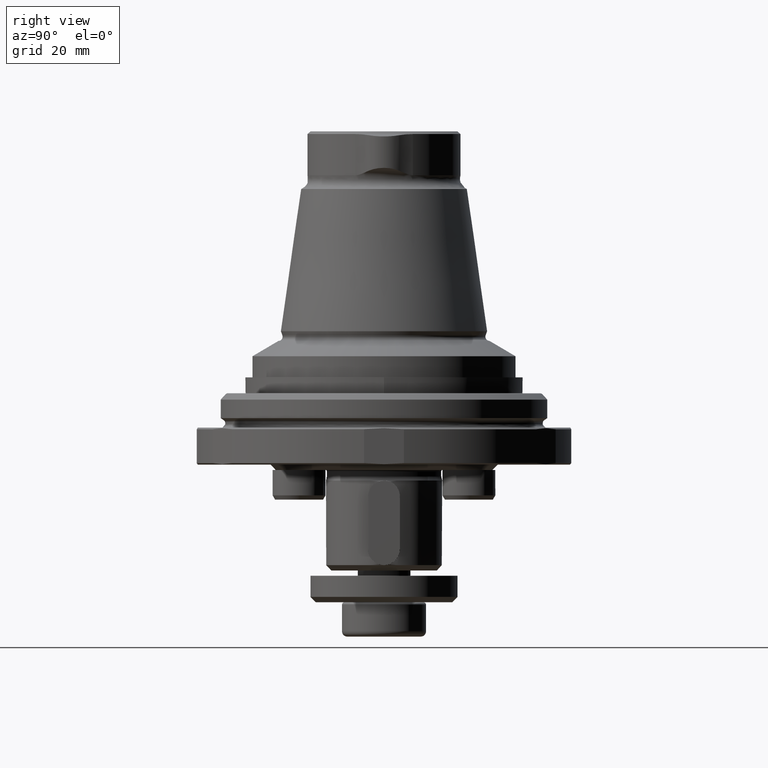
[diagram: clean part render]
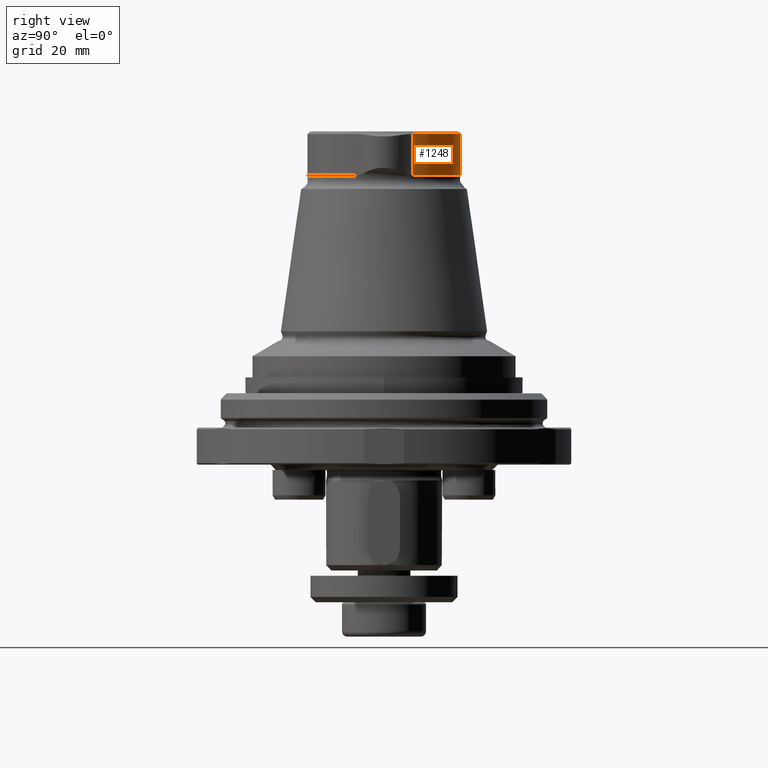
[diagram: same view with one face highlighted and labeled with its STEP entity id]
A machine part, right view. The second image highlights one B-rep face of the part: STEP entity #1248.
In plain terms, the highlighted cylindrical surface (partial cylindrical patch) has radius 14.5 mm, axis along (0, 0, 1).
Its self-contained STEP definition (entity closure, byte-faithful):
#85=LINE('',#2138,#126);
#86=LINE('',#2146,#127);
#126=VECTOR('',#1670,1000.);
#127=VECTOR('',#1673,1000.);
#350=ORIENTED_EDGE('',*,*,#622,.T.);
#351=ORIENTED_EDGE('',*,*,#595,.T.);
#352=ORIENTED_EDGE('',*,*,#620,.F.);
#353=ORIENTED_EDGE('',*,*,#623,.F.);
#595=EDGE_CURVE('',#749,#744,#859,.T.);
#620=EDGE_CURVE('',#764,#744,#85,.T.);
#622=EDGE_CURVE('',#765,#749,#86,.T.);
#623=EDGE_CURVE('',#765,#764,#864,.T.);
#744=VERTEX_POINT('',#2021);
#749=VERTEX_POINT('',#2041);
#764=VERTEX_POINT('',#2139);
#765=VERTEX_POINT('',#2147);
#859=CIRCLE('',#1376,14.5);
#864=CIRCLE('',#1393,14.5);
#966=EDGE_LOOP('',(#350,#351,#352,#353));
#1099=FACE_BOUND('',#966,.T.);
#1188=CYLINDRICAL_SURFACE('',#1392,14.5);
#1248=ADVANCED_FACE('',(#1099),#1188,.T.);
#1376=AXIS2_PLACEMENT_3D('',#2044,#1630,#1631);
#1392=AXIS2_PLACEMENT_3D('',#2145,#1671,#1672);
#1393=AXIS2_PLACEMENT_3D('',#2148,#1674,#1675);
#1630=DIRECTION('',(5.35909541760885E-17,-6.68035657486175E-33,-1.));
#1631=DIRECTION('',(-1.,6.12303176911189E-17,-5.35909541760885E-17));
#1670=DIRECTION('',(5.55111512312578E-17,0.,1.));
#1671=DIRECTION('',(5.55111512312578E-17,0.,1.));
#1672=DIRECTION('',(1.,-6.12303176911189E-17,-5.55111512312578E-17));
#1673=DIRECTION('',(5.55111512312578E-17,0.,1.));
#1674=DIRECTION('',(5.35909541760885E-17,-6.68035657486175E-33,-1.));
#1675=DIRECTION('',(-1.,6.12303176911189E-17,-5.35909541760885E-17));
#2021=CARTESIAN_POINT('',(13.4419590316582,5.43725458216281,54.499999999999));
#2041=CARTESIAN_POINT('',(-2.01217892083188,14.3597052891266,54.4999999999996));
#2044=CARTESIAN_POINT('',(9.24158705800977E-15,-3.33275841609771E-33,54.5));
#2138=CARTESIAN_POINT('',(13.4419590316582,5.43725458216281,-42.9132268899356));
#2139=CARTESIAN_POINT('',(13.4419590316583,5.43725458216266,46.6780044888655));
#2145=CARTESIAN_POINT('',(8.49182174714831E-13,4.87319645667346E-13,-42.9132268899356));
#2146=CARTESIAN_POINT('',(-2.01217892083188,14.3597052891266,-42.9132268899356));
#2147=CARTESIAN_POINT('',(-2.01217892083188,14.3597052891266,46.6780044888637));
#2148=CARTESIAN_POINT('',(8.68481496626494E-15,4.17188134385998E-33,46.6780044888626));